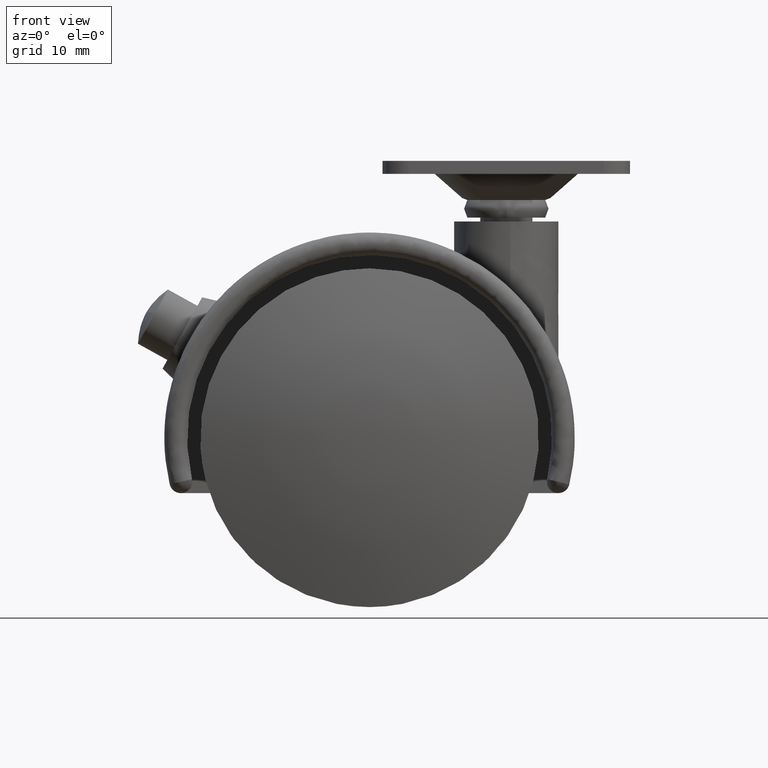
[diagram: clean part render]
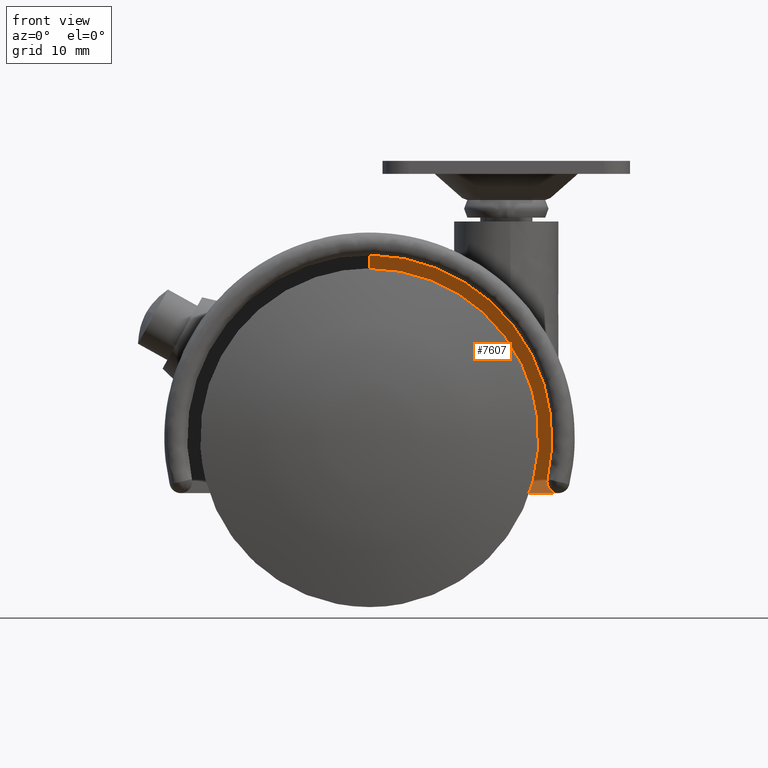
[diagram: same view with one face highlighted and labeled with its STEP entity id]
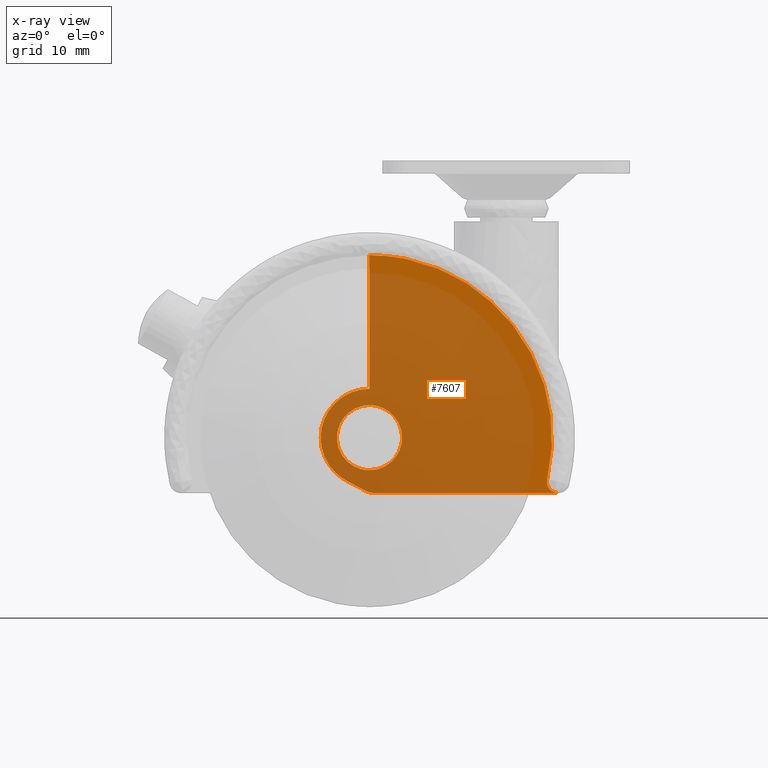
[diagram: x-ray of the same camera — body ghosted, the highlighted face saturated]
A machine part, front view. The second image highlights one B-rep face of the part: STEP entity #7607.
The next image is the same camera in x-ray: the body ghosted, the highlighted face saturated — about 84% of this face is hidden behind the body in this view.
In plain terms, the highlighted face is a freeform B-spline surface patch.
Its self-contained STEP definition (entity closure, byte-faithful):
#5221=CARTESIAN_POINT('',(4.999809615319208,-6.900000000000000,-0.043632677680711));
#5222=VERTEX_POINT('',#5221);
#5228=CARTESIAN_POINT('',(0.0,-6.900000000000000,5.0));
#5229=VERTEX_POINT('',#5228);
#5230=CARTESIAN_POINT('',(4.999809615319208,-6.900000000000000,-0.043632677680711));
#5231=CARTESIAN_POINT('',(5.0,-6.900000000000000,-0.021816754292360));
#5232=CARTESIAN_POINT('',(5.0,-6.900000000000000,0.0));
#5233=CARTESIAN_POINT('',(5.000000000000001,-6.900000000000000,5.000000000000001));
#5234=CARTESIAN_POINT('',(0.0,-6.900000000000000,5.0));
#5242=(BOUNDED_CURVE()B_SPLINE_CURVE(2,(#5230,#5231,#5232,#5233,#5234),.UNSPECIFIED.,.F.,.U.)B_SPLINE_CURVE_WITH_KNOTS((3,2,3),(0.248460105651707,0.250000000000000,0.500000000000000),.UNSPECIFIED.)CURVE()GEOMETRIC_REPRESENTATION_ITEM()RATIONAL_B_SPLINE_CURVE((0.996414028069613,0.998195901550783,1.0,0.707106781186548,1.0))REPRESENTATION_ITEM(''));
#5243=EDGE_CURVE('',#5222,#5229,#5242,.T.);
#5245=CARTESIAN_POINT('',(-4.961331069122825,-6.899999999999999,0.620640010438058));
#5246=VERTEX_POINT('',#5245);
#5247=CARTESIAN_POINT('',(0.0,-6.900000000000000,5.0));
#5248=CARTESIAN_POINT('',(-4.413493000681376,-6.900000000000000,4.999999999999999));
#5249=CARTESIAN_POINT('',(-4.961331069122825,-6.899999999999999,0.620640010438058));
#5257=(BOUNDED_CURVE()B_SPLINE_CURVE(2,(#5247,#5248,#5249),.UNSPECIFIED.,.F.,.U.)B_SPLINE_CURVE_WITH_KNOTS((3,3),(0.500000000000000,0.728526071026653),.UNSPECIFIED.)CURVE()GEOMETRIC_REPRESENTATION_ITEM()RATIONAL_B_SPLINE_CURVE((1.0,0.732265053896847,0.954005430269585))REPRESENTATION_ITEM(''));
#5258=EDGE_CURVE('',#5229,#5246,#5257,.T.);
#5308=CARTESIAN_POINT('',(0.0,-6.900000000000000,-5.0));
#5309=VERTEX_POINT('',#5308);
#5310=CARTESIAN_POINT('',(-4.961331069122825,-6.899999999999999,0.620640010438058));
#5311=CARTESIAN_POINT('',(-5.0,-6.899999999999999,0.311524637706838));
#5312=CARTESIAN_POINT('',(-5.0,-6.900000000000000,0.0));
#5313=CARTESIAN_POINT('',(-5.000000000000001,-6.900000000000000,-5.000000000000001));
#5314=CARTESIAN_POINT('',(0.0,-6.900000000000000,-5.0));
#5322=(BOUNDED_CURVE()B_SPLINE_CURVE(2,(#5310,#5311,#5312,#5313,#5314),.UNSPECIFIED.,.F.,.U.)B_SPLINE_CURVE_WITH_KNOTS((3,2,3),(0.728526071026653,0.750000000000000,1.0),.UNSPECIFIED.)CURVE()GEOMETRIC_REPRESENTATION_ITEM()RATIONAL_B_SPLINE_CURVE((0.954005430269585,0.974841727289700,1.0,0.707106781186548,1.0))REPRESENTATION_ITEM(''));
#5323=EDGE_CURVE('',#5246,#5309,#5322,.T.);
#5325=CARTESIAN_POINT('',(0.0,-6.900000000000000,-5.0));
#5326=CARTESIAN_POINT('',(4.956556052600460,-6.900000000000000,-4.999999999999999));
#5327=CARTESIAN_POINT('',(4.999809615319208,-6.900000000000000,-0.043632677680711));
#5335=(BOUNDED_CURVE()B_SPLINE_CURVE(2,(#5325,#5326,#5327),.UNSPECIFIED.,.F.,.U.)B_SPLINE_CURVE_WITH_KNOTS((3,3),(0.0,0.248460105651707),.UNSPECIFIED.)CURVE()GEOMETRIC_REPRESENTATION_ITEM()RATIONAL_B_SPLINE_CURVE((1.0,0.708910879635764,0.996414028069613))REPRESENTATION_ITEM(''));
#5336=EDGE_CURVE('',#5309,#5222,#5335,.T.);
#7107=CARTESIAN_POINT('',(27.269766013083149,-6.900000000000000,-6.352941176470590));
#7108=VERTEX_POINT('',#7107);
#7114=CARTESIAN_POINT('',(28.974126388900849,-6.900000000000000,-8.500000000000000));
#7115=VERTEX_POINT('',#7114);
#7116=CARTESIAN_POINT('',(28.974126388900849,-6.900000000000000,-8.500000000000000));
#7117=CARTESIAN_POINT('',(28.128952516628051,-6.900000000000000,-8.500000000000000));
#7118=CARTESIAN_POINT('',(27.603478195312050,-6.900000000000000,-7.838036547829054));
#7119=CARTESIAN_POINT('',(27.078003873996046,-6.900000000000000,-7.176073095658110));
#7120=CARTESIAN_POINT('',(27.269766013083149,-6.900000000000000,-6.352941176470590));
#7128=(BOUNDED_CURVE()B_SPLINE_CURVE(2,(#7116,#7117,#7118,#7119,#7120),.UNSPECIFIED.,.F.,.U.)B_SPLINE_CURVE_WITH_KNOTS((3,2,3),(0.0,0.500000000000000,1.0),.UNSPECIFIED.)CURVE()GEOMETRIC_REPRESENTATION_ITEM()RATIONAL_B_SPLINE_CURVE((1.0,0.900481862723517,1.0,0.900481862723517,1.0))REPRESENTATION_ITEM(''));
#7129=EDGE_CURVE('',#7115,#7108,#7128,.T.);
#7525=CARTESIAN_POINT('',(-9.320279099191883,-6.900000000000000,-10.323174929255920));
#7526=CARTESIAN_POINT('',(30.795933627888662,-6.900000000000000,-10.323174929255920));
#7527=CARTESIAN_POINT('',(-9.320279099191883,-6.900000000000000,29.823175908262211));
#7528=CARTESIAN_POINT('',(30.795933627888662,-6.900000000000000,29.823175908262211));
#7529=B_SPLINE_SURFACE_WITH_KNOTS('',1,1,((#7525,#7527),(#7526,#7528)),.UNSPECIFIED.,.F.,.F.,.U.,(2,2),(2,2),(0.0,40.116212727080537),(0.0,40.146350837518128),.UNSPECIFIED.);
#7530=CARTESIAN_POINT('',(0.0,-6.900000000000000,7.500000000000000));
#7531=VERTEX_POINT('',#7530);
#7532=CARTESIAN_POINT('',(-3.529411764705881,-6.900000000000000,-6.617647058823529));
#7533=VERTEX_POINT('',#7532);
#7534=CARTESIAN_POINT('',(0.0,-6.900000000000000,7.500000000000000));
#7535=CARTESIAN_POINT('',(-5.855823048033113,-6.900000000000000,7.500000000000001));
#7536=CARTESIAN_POINT('',(-7.276068751089989,-6.900000000000000,1.819017187772499));
#7537=CARTESIAN_POINT('',(-8.696314454146867,-6.900000000000000,-3.861965624455003));
#7538=CARTESIAN_POINT('',(-3.529411764705885,-6.900000000000000,-6.617647058823528));
#7546=(BOUNDED_CURVE()B_SPLINE_CURVE(2,(#7534,#7535,#7536,#7537,#7538),.UNSPECIFIED.,.F.,.U.)B_SPLINE_CURVE_WITH_KNOTS((3,2,3),(0.0,0.500000000000000,1.0),.UNSPECIFIED.)CURVE()GEOMETRIC_REPRESENTATION_ITEM()RATIONAL_B_SPLINE_CURVE((1.0,0.788205438016109,1.0,0.788205438016109,1.0))REPRESENTATION_ITEM(''));
#7547=EDGE_CURVE('',#7531,#7533,#7546,.T.);
#7548=ORIENTED_EDGE('',*,*,#7547,.T.);
#7549=CARTESIAN_POINT('',(-0.661764705882354,-6.900000000000000,-8.147058823529410));
#7550=VERTEX_POINT('',#7549);
#7551=CARTESIAN_POINT('',(-0.661764705882354,-6.900000000000000,-8.147058823529410));
#7552=CARTESIAN_POINT('',(-3.529411764705881,-6.900000000000000,-6.617647058823529));
#7553=QUASI_UNIFORM_CURVE('',1,(#7551,#7552),.UNSPECIFIED.,.F.,.U.);
#7554=EDGE_CURVE('',#7550,#7533,#7553,.T.);
#7555=ORIENTED_EDGE('',*,*,#7554,.F.);
#7556=CARTESIAN_POINT('',(0.750000000000000,-6.900000000000000,-8.500000000000000));
#7557=VERTEX_POINT('',#7556);
#7558=CARTESIAN_POINT('',(-0.661764705882354,-6.900000000000000,-8.147058823529410));
#7559=CARTESIAN_POINT('',(-5.421011E-016,-6.900000000000000,-8.500000000000000));
#7560=CARTESIAN_POINT('',(0.750000000000000,-6.900000000000000,-8.500000000000000));
#7568=(BOUNDED_CURVE()B_SPLINE_CURVE(2,(#7558,#7559,#7560),.UNSPECIFIED.,.F.,.U.)CURVE()GEOMETRIC_REPRESENTATION_ITEM()QUASI_UNIFORM_CURVE()RATIONAL_B_SPLINE_CURVE((1.0,0.970142500145332,1.0))REPRESENTATION_ITEM(''));
#7569=EDGE_CURVE('',#7550,#7557,#7568,.T.);
#7570=ORIENTED_EDGE('',*,*,#7569,.T.);
#7571=CARTESIAN_POINT('',(28.974126388900849,-6.900000000000000,-8.500000000000000));
#7572=CARTESIAN_POINT('',(0.750000000000000,-6.900000000000000,-8.500000000000000));
#7573=QUASI_UNIFORM_CURVE('',1,(#7571,#7572),.UNSPECIFIED.,.F.,.U.);
#7574=EDGE_CURVE('',#7115,#7557,#7573,.T.);
#7575=ORIENTED_EDGE('',*,*,#7574,.F.);
#7576=ORIENTED_EDGE('',*,*,#7129,.T.);
#7577=CARTESIAN_POINT('',(0.0,-6.900000000000000,28.0));
#7578=VERTEX_POINT('',#7577);
#7579=CARTESIAN_POINT('',(27.269766013083139,-6.900000000000000,-6.352941176470591));
#7580=CARTESIAN_POINT('',(30.337960238476821,-6.900000000000000,6.817169530529715));
#7581=CARTESIAN_POINT('',(21.930371097420782,-6.900000000000000,17.408584765264859));
#7582=CARTESIAN_POINT('',(13.522781956364728,-6.900000000000000,27.999999999999993));
#7583=CARTESIAN_POINT('',(0.0,-6.900000000000000,28.0));
#7591=(BOUNDED_CURVE()B_SPLINE_CURVE(2,(#7579,#7580,#7581,#7582,#7583),.UNSPECIFIED.,.F.,.U.)B_SPLINE_CURVE_WITH_KNOTS((3,2,3),(0.0,0.500000000000000,1.0),.UNSPECIFIED.)CURVE()GEOMETRIC_REPRESENTATION_ITEM()RATIONAL_B_SPLINE_CURVE((1.0,0.900481862723517,1.0,0.900481862723517,1.0))REPRESENTATION_ITEM(''));
#7592=EDGE_CURVE('',#7108,#7578,#7591,.T.);
#7593=ORIENTED_EDGE('',*,*,#7592,.T.);
#7594=CARTESIAN_POINT('',(0.0,-6.900000000000000,7.500000000000000));
#7595=CARTESIAN_POINT('',(0.0,-6.900000000000000,28.0));
#7596=QUASI_UNIFORM_CURVE('',1,(#7594,#7595),.UNSPECIFIED.,.F.,.U.);
#7597=EDGE_CURVE('',#7531,#7578,#7596,.T.);
#7598=ORIENTED_EDGE('',*,*,#7597,.F.);
#7599=EDGE_LOOP('',(#7548,#7555,#7570,#7575,#7576,#7593,#7598));
#7600=FACE_OUTER_BOUND('',#7599,.T.);
#7601=ORIENTED_EDGE('',*,*,#5336,.F.);
#7602=ORIENTED_EDGE('',*,*,#5323,.F.);
#7603=ORIENTED_EDGE('',*,*,#5258,.F.);
#7604=ORIENTED_EDGE('',*,*,#5243,.F.);
#7605=EDGE_LOOP('',(#7601,#7602,#7603,#7604));
#7606=FACE_BOUND('',#7605,.T.);
#7607=ADVANCED_FACE('',(#7600,#7606),#7529,.T.);